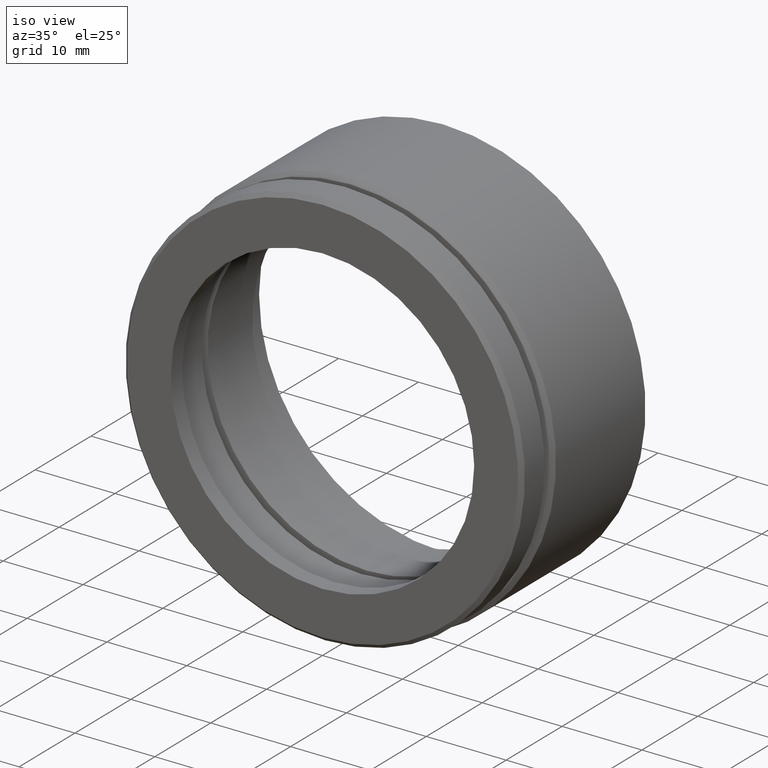
[diagram: clean part render]
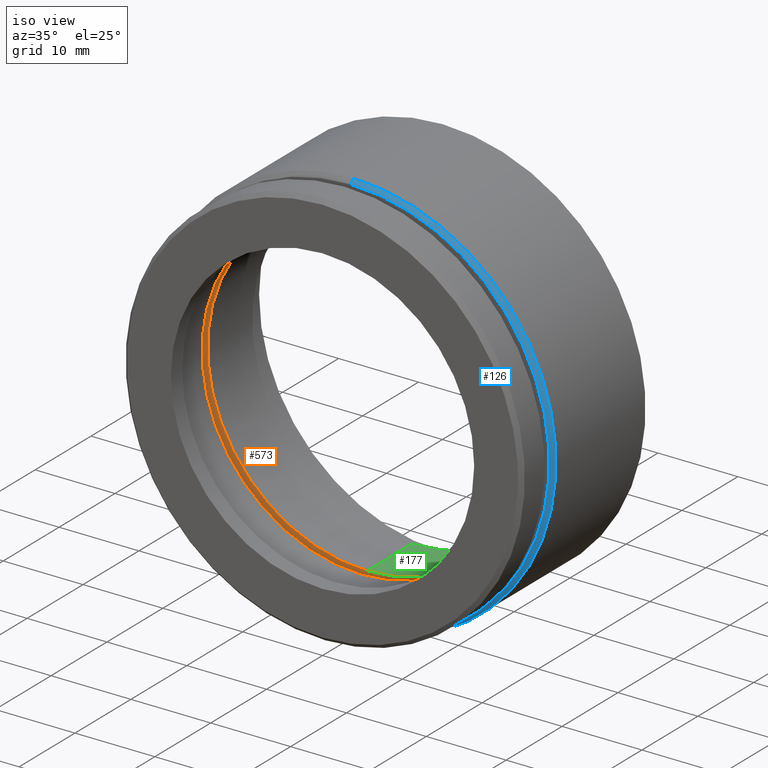
[diagram: same view with three faces highlighted in distinct colors, each labeled with its STEP entity id]
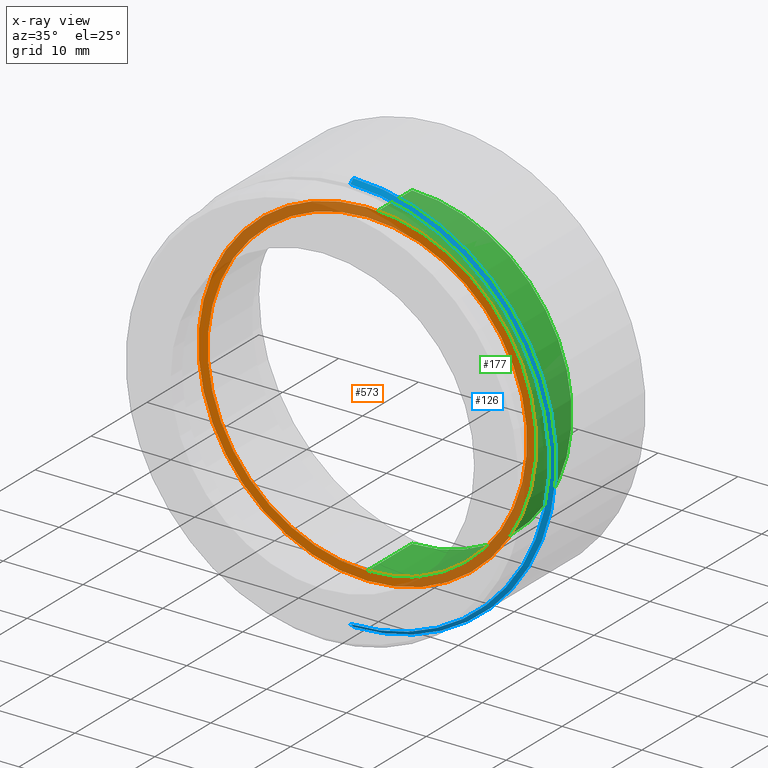
[diagram: x-ray of the same camera — body ghosted, the three highlighted faces saturated]
A machine part, iso view with three faces highlighted in distinct colors.
The next image is the same camera in x-ray (body ghosted, the three faces saturated) — at least one of them is partly hidden behind the body in this view.
Their STEP definitions:

[orange] entity #573 — the highlighted planar face has unit normal (0, -1, -0).
#57 = FACE_BOUND ( 'NONE', #674, .T. ) ;
#65 = VERTEX_POINT ( 'NONE', #154 ) ;
#68 = EDGE_CURVE ( 'NONE', #540, #737, #656, .T. ) ;
#84 = CARTESIAN_POINT ( 'NONE',  ( 0.0000000000000000000, 8.000000000000000000, 0.0000000000000000000 ) ) ;
#128 = EDGE_CURVE ( 'NONE', #65, #937, #565, .T. ) ;
#138 = DIRECTION ( 'NONE',  ( 0.0000000000000000000, 0.0000000000000000000, -1.000000000000000000 ) ) ;
#154 = CARTESIAN_POINT ( 'NONE',  ( 2.590127980196652100E-015, 8.000000000000000000, 21.14999999999999900 ) ) ;
#178 = ORIENTED_EDGE ( 'NONE', *, *, #812, .F. ) ;
#188 = CARTESIAN_POINT ( 'NONE',  ( 0.0000000000000000000, 8.000000000000000000, 0.0000000000000000000 ) ) ;
#198 = ORIENTED_EDGE ( 'NONE', *, *, #68, .F. ) ;
#220 = AXIS2_PLACEMENT_3D ( 'NONE', #659, #1107, #138 ) ;
#231 = AXIS2_PLACEMENT_3D ( 'NONE', #325, #863, #946 ) ;
#249 = DIRECTION ( 'NONE',  ( 0.0000000000000000000, 0.0000000000000000000, -1.000000000000000000 ) ) ;
#275 = DIRECTION ( 'NONE',  ( 0.0000000000000000000, 0.0000000000000000000, -1.000000000000000000 ) ) ;
#297 = CARTESIAN_POINT ( 'NONE',  ( 0.0000000000000000000, 8.000000000000000000, -21.14999999999999900 ) ) ;
#325 = CARTESIAN_POINT ( 'NONE',  ( 0.0000000000000000000, 8.000000000000000000, 0.0000000000000000000 ) ) ;
#367 = PLANE ( 'NONE',  #513 ) ;
#404 = AXIS2_PLACEMENT_3D ( 'NONE', #188, #886, #249 ) ;
#475 = CARTESIAN_POINT ( 'NONE',  ( 2.449293598294706500E-015, 8.000000000000000000, 20.00000000000000000 ) ) ;
#495 = CIRCLE ( 'NONE', #220, 20.00000000000000000 ) ;
#513 = AXIS2_PLACEMENT_3D ( 'NONE', #730, #597, #275 ) ;
#516 = CIRCLE ( 'NONE', #404, 21.14999999999999900 ) ;
#540 = VERTEX_POINT ( 'NONE', #475 ) ;
#565 = CIRCLE ( 'NONE', #231, 21.14999999999999900 ) ;
#573 = ADVANCED_FACE ( 'NONE', ( #630, #57 ), #367, .T. ) ;
#597 = DIRECTION ( 'NONE',  ( 0.0000000000000000000, -1.000000000000000000, -0.0000000000000000000 ) ) ;
#629 = ORIENTED_EDGE ( 'NONE', *, *, #128, .T. ) ;
#630 = FACE_OUTER_BOUND ( 'NONE', #760, .T. ) ;
#649 = EDGE_CURVE ( 'NONE', #937, #65, #516, .T. ) ;
#656 = CIRCLE ( 'NONE', #1092, 20.00000000000000000 ) ;
#659 = CARTESIAN_POINT ( 'NONE',  ( 0.0000000000000000000, 8.000000000000000000, 0.0000000000000000000 ) ) ;
#674 = EDGE_LOOP ( 'NONE', ( #178, #198 ) ) ;
#692 = DIRECTION ( 'NONE',  ( 0.0000000000000000000, 0.0000000000000000000, -1.000000000000000000 ) ) ;
#730 = CARTESIAN_POINT ( 'NONE',  ( 21.14999999999999900, 8.000000000000000000, 0.0000000000000000000 ) ) ;
#737 = VERTEX_POINT ( 'NONE', #1091 ) ;
#760 = EDGE_LOOP ( 'NONE', ( #880, #629 ) ) ;
#812 = EDGE_CURVE ( 'NONE', #737, #540, #495, .T. ) ;
#863 = DIRECTION ( 'NONE',  ( -0.0000000000000000000, -1.000000000000000000, -0.0000000000000000000 ) ) ;
#880 = ORIENTED_EDGE ( 'NONE', *, *, #649, .T. ) ;
#886 = DIRECTION ( 'NONE',  ( -0.0000000000000000000, -1.000000000000000000, -0.0000000000000000000 ) ) ;
#937 = VERTEX_POINT ( 'NONE', #297 ) ;
#946 = DIRECTION ( 'NONE',  ( 0.0000000000000000000, 0.0000000000000000000, -1.000000000000000000 ) ) ;
#1091 = CARTESIAN_POINT ( 'NONE',  ( 0.0000000000000000000, 8.000000000000000000, -20.00000000000000000 ) ) ;
#1092 = AXIS2_PLACEMENT_3D ( 'NONE', #84, #1104, #692 ) ;
#1104 = DIRECTION ( 'NONE',  ( -0.0000000000000000000, -1.000000000000000000, -0.0000000000000000000 ) ) ;
#1107 = DIRECTION ( 'NONE',  ( -0.0000000000000000000, -1.000000000000000000, -0.0000000000000000000 ) ) ;

[blue] entity #126 — the highlighted conical surface has half-angle 45 deg.
#4 = CARTESIAN_POINT ( 'NONE',  ( 3.049370529876909300E-015, 5.000000000000000900, -24.89999999999999900 ) ) ;
#18 = DIRECTION ( 'NONE',  ( 0.0000000000000000000, 0.0000000000000000000, -1.000000000000000000 ) ) ;
#19 = DIRECTION ( 'NONE',  ( 0.0000000000000000000, 0.0000000000000000000, -1.000000000000000000 ) ) ;
#70 = VERTEX_POINT ( 'NONE', #1029 ) ;
#91 = VECTOR ( 'NONE', #92, 1000.000000000000000 ) ;
#92 = DIRECTION ( 'NONE',  ( 8.659560562354955000E-017, 0.7071067811865456900, -0.7071067811865493500 ) ) ;
#126 = ADVANCED_FACE ( 'NONE', ( #817 ), #790, .T. ) ;
#131 = ORIENTED_EDGE ( 'NONE', *, *, #381, .F. ) ;
#149 = EDGE_CURVE ( 'NONE', #290, #70, #165, .T. ) ;
#165 = LINE ( 'NONE', #4, #91 ) ;
#180 = VECTOR ( 'NONE', #427, 1000.000000000000000 ) ;
#187 = CARTESIAN_POINT ( 'NONE',  ( 0.0000000000000000000, 5.000000000000000900, 0.0000000000000000000 ) ) ;
#257 = ORIENTED_EDGE ( 'NONE', *, *, #149, .T. ) ;
#266 = VERTEX_POINT ( 'NONE', #747 ) ;
#286 = AXIS2_PLACEMENT_3D ( 'NONE', #1034, #585, #1030 ) ;
#290 = VERTEX_POINT ( 'NONE', #904 ) ;
#315 = ORIENTED_EDGE ( 'NONE', *, *, #343, .F. ) ;
#321 = CARTESIAN_POINT ( 'NONE',  ( 0.0000000000000000000, 5.499999999999999100, 0.0000000000000000000 ) ) ;
#343 = EDGE_CURVE ( 'NONE', #290, #266, #1028, .T. ) ;
#369 = AXIS2_PLACEMENT_3D ( 'NONE', #187, #522, #19 ) ;
#381 = EDGE_CURVE ( 'NONE', #266, #594, #1087, .T. ) ;
#427 = DIRECTION ( 'NONE',  ( 0.0000000000000000000, 0.7071067811865456900, 0.7071067811865493500 ) ) ;
#480 = ORIENTED_EDGE ( 'NONE', *, *, #982, .T. ) ;
#503 = AXIS2_PLACEMENT_3D ( 'NONE', #321, #801, #18 ) ;
#522 = DIRECTION ( 'NONE',  ( -0.0000000000000000000, -1.000000000000000000, -0.0000000000000000000 ) ) ;
#585 = DIRECTION ( 'NONE',  ( 0.0000000000000000000, 1.000000000000000000, 0.0000000000000000000 ) ) ;
#594 = VERTEX_POINT ( 'NONE', #662 ) ;
#633 = CIRCLE ( 'NONE', #503, 25.39999999999999900 ) ;
#662 = CARTESIAN_POINT ( 'NONE',  ( 0.0000000000000000000, 5.499999999999999100, 25.39999999999999900 ) ) ;
#708 = CARTESIAN_POINT ( 'NONE',  ( 0.0000000000000000000, 5.000000000000000900, 24.89999999999999900 ) ) ;
#747 = CARTESIAN_POINT ( 'NONE',  ( 0.0000000000000000000, 5.000000000000000900, 24.89999999999999900 ) ) ;
#790 = CONICAL_SURFACE ( 'NONE', #286, 24.89999999999999900, 0.7853981633974509400 ) ;
#801 = DIRECTION ( 'NONE',  ( -0.0000000000000000000, -1.000000000000000000, -0.0000000000000000000 ) ) ;
#817 = FACE_OUTER_BOUND ( 'NONE', #892, .T. ) ;
#892 = EDGE_LOOP ( 'NONE', ( #315, #257, #480, #131 ) ) ;
#904 = CARTESIAN_POINT ( 'NONE',  ( 3.079986699855593100E-015, 5.000000000000000900, -24.89999999999999900 ) ) ;
#982 = EDGE_CURVE ( 'NONE', #70, #594, #633, .T. ) ;
#1028 = CIRCLE ( 'NONE', #369, 24.89999999999999900 ) ;
#1029 = CARTESIAN_POINT ( 'NONE',  ( 3.110602869834276900E-015, 5.499999999999999100, -25.39999999999999900 ) ) ;
#1030 = DIRECTION ( 'NONE',  ( 0.0000000000000000000, 0.0000000000000000000, 1.000000000000000000 ) ) ;
#1034 = CARTESIAN_POINT ( 'NONE',  ( 0.0000000000000000000, 5.000000000000000900, 0.0000000000000000000 ) ) ;
#1087 = LINE ( 'NONE', #708, #180 ) ;

[green] entity #177 — the highlighted cylindrical surface (partial cylindrical patch) has radius 20 mm, axis along (-0, -1, -0).
#34 = DIRECTION ( 'NONE',  ( 0.0000000000000000000, 0.0000000000000000000, 1.000000000000000000 ) ) ;
#80 = CARTESIAN_POINT ( 'NONE',  ( 0.0000000000000000000, 0.0000000000000000000, -20.00000000000000000 ) ) ;
#87 = EDGE_CURVE ( 'NONE', #673, #737, #628, .T. ) ;
#119 = VERTEX_POINT ( 'NONE', #500 ) ;
#120 = AXIS2_PLACEMENT_3D ( 'NONE', #538, #148, #34 ) ;
#132 = CYLINDRICAL_SURFACE ( 'NONE', #906, 20.00000000000000000 ) ;
#138 = DIRECTION ( 'NONE',  ( 0.0000000000000000000, 0.0000000000000000000, -1.000000000000000000 ) ) ;
#148 = DIRECTION ( 'NONE',  ( -0.0000000000000000000, 1.000000000000000000, -0.0000000000000000000 ) ) ;
#158 = EDGE_CURVE ( 'NONE', #119, #540, #723, .T. ) ;
#172 = DIRECTION ( 'NONE',  ( -0.0000000000000000000, -1.000000000000000000, -0.0000000000000000000 ) ) ;
#177 = ADVANCED_FACE ( 'NONE', ( #974 ), #132, .F. ) ;
#220 = AXIS2_PLACEMENT_3D ( 'NONE', #659, #1107, #138 ) ;
#241 = EDGE_LOOP ( 'NONE', ( #991, #1062, #993, #1039 ) ) ;
#253 = CARTESIAN_POINT ( 'NONE',  ( 0.0000000000000000000, 0.0000000000000000000, 0.0000000000000000000 ) ) ;
#419 = CARTESIAN_POINT ( 'NONE',  ( 2.449293598294706500E-015, 0.0000000000000000000, 20.00000000000000000 ) ) ;
#475 = CARTESIAN_POINT ( 'NONE',  ( 2.449293598294706500E-015, 8.000000000000000000, 20.00000000000000000 ) ) ;
#490 = DIRECTION ( 'NONE',  ( 0.0000000000000000000, 0.0000000000000000000, -1.000000000000000000 ) ) ;
#495 = CIRCLE ( 'NONE', #220, 20.00000000000000000 ) ;
#500 = CARTESIAN_POINT ( 'NONE',  ( 2.449293598294706500E-015, 15.99999999999999600, 20.00000000000000000 ) ) ;
#538 = CARTESIAN_POINT ( 'NONE',  ( 0.0000000000000000000, 15.99999999999999600, 0.0000000000000000000 ) ) ;
#540 = VERTEX_POINT ( 'NONE', #475 ) ;
#567 = CIRCLE ( 'NONE', #120, 20.00000000000000000 ) ;
#628 = LINE ( 'NONE', #80, #1063 ) ;
#659 = CARTESIAN_POINT ( 'NONE',  ( 0.0000000000000000000, 8.000000000000000000, 0.0000000000000000000 ) ) ;
#673 = VERTEX_POINT ( 'NONE', #719 ) ;
#719 = CARTESIAN_POINT ( 'NONE',  ( 0.0000000000000000000, 15.99999999999999600, -20.00000000000000000 ) ) ;
#723 = LINE ( 'NONE', #419, #739 ) ;
#737 = VERTEX_POINT ( 'NONE', #1091 ) ;
#739 = VECTOR ( 'NONE', #794, 1000.000000000000000 ) ;
#773 = EDGE_CURVE ( 'NONE', #119, #673, #567, .T. ) ;
#794 = DIRECTION ( 'NONE',  ( -0.0000000000000000000, -1.000000000000000000, -0.0000000000000000000 ) ) ;
#812 = EDGE_CURVE ( 'NONE', #737, #540, #495, .T. ) ;
#906 = AXIS2_PLACEMENT_3D ( 'NONE', #253, #172, #490 ) ;
#974 = FACE_OUTER_BOUND ( 'NONE', #241, .T. ) ;
#991 = ORIENTED_EDGE ( 'NONE', *, *, #158, .F. ) ;
#993 = ORIENTED_EDGE ( 'NONE', *, *, #87, .T. ) ;
#1026 = DIRECTION ( 'NONE',  ( -0.0000000000000000000, -1.000000000000000000, -0.0000000000000000000 ) ) ;
#1039 = ORIENTED_EDGE ( 'NONE', *, *, #812, .T. ) ;
#1062 = ORIENTED_EDGE ( 'NONE', *, *, #773, .T. ) ;
#1063 = VECTOR ( 'NONE', #1026, 1000.000000000000000 ) ;
#1091 = CARTESIAN_POINT ( 'NONE',  ( 0.0000000000000000000, 8.000000000000000000, -20.00000000000000000 ) ) ;
#1107 = DIRECTION ( 'NONE',  ( -0.0000000000000000000, -1.000000000000000000, -0.0000000000000000000 ) ) ;